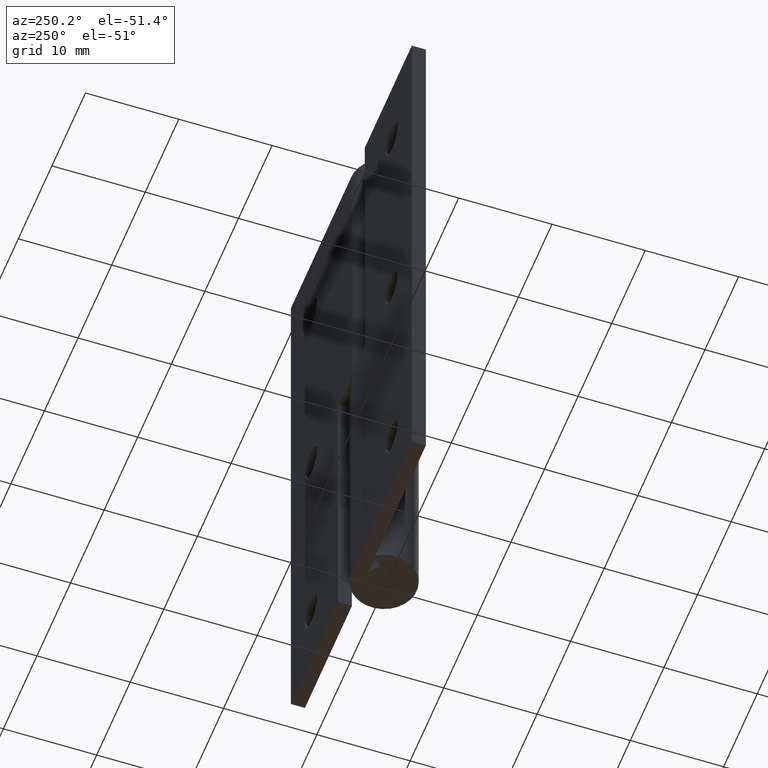
[diagram: clean part render]
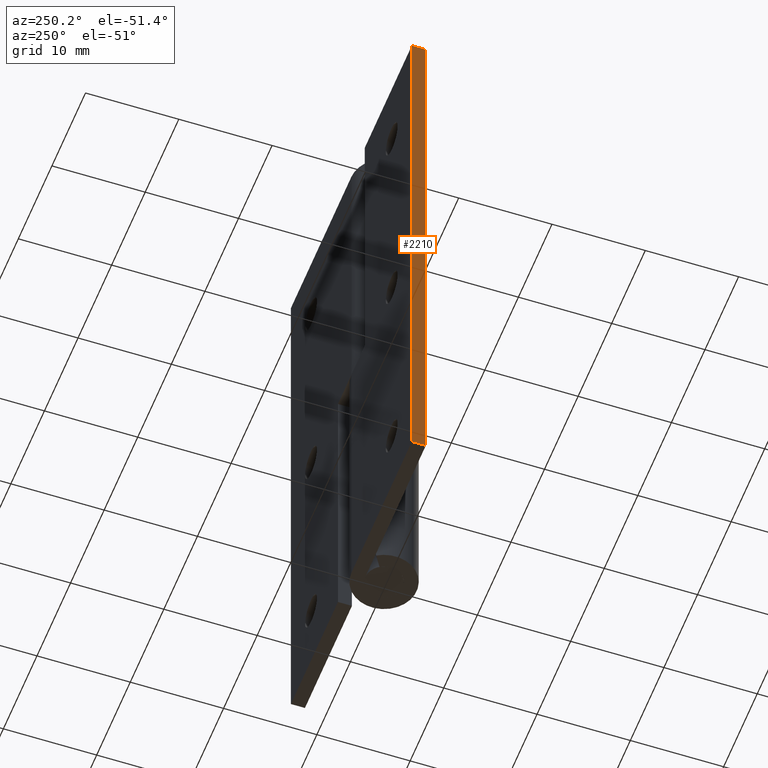
[diagram: same view with one face highlighted and labeled with its STEP entity id]
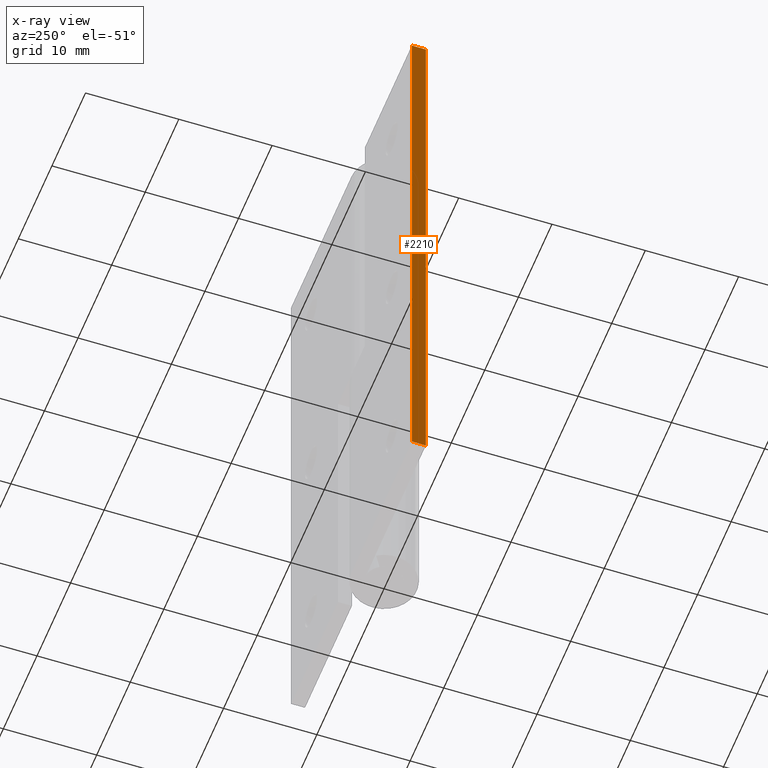
[diagram: x-ray of the same camera — body ghosted, the highlighted face saturated]
A machine part, auxiliary view. The second image highlights one B-rep face of the part: STEP entity #2210.
The next image is the same camera in x-ray: the body ghosted, the highlighted face saturated — about 0% of this face is hidden behind the body in this view.
In plain terms, the highlighted face is a freeform B-spline surface patch.
Its self-contained STEP definition (entity closure, byte-faithful):
#1870=CARTESIAN_POINT('',(-18.0,2.0,64.000007999999994));
#1871=VERTEX_POINT('',#1870);
#1878=CARTESIAN_POINT('',(-18.0,3.499999999999950,64.000007999999994));
#1879=VERTEX_POINT('',#1878);
#1885=CARTESIAN_POINT('',(-18.0,3.499999999999950,64.000007999999994));
#1886=CARTESIAN_POINT('',(-18.0,2.0,64.000007999999994));
#1887=QUASI_UNIFORM_CURVE('',1,(#1885,#1886),.UNSPECIFIED.,.F.,.U.);
#1888=EDGE_CURVE('',#1879,#1871,#1887,.T.);
#1898=CARTESIAN_POINT('',(-18.0,2.0,0.0));
#1899=VERTEX_POINT('',#1898);
#1900=CARTESIAN_POINT('',(-18.0,3.500000000000000,0.0));
#1901=VERTEX_POINT('',#1900);
#1902=CARTESIAN_POINT('',(-18.0,2.0,0.0));
#1903=CARTESIAN_POINT('',(-18.0,3.500000000000000,0.0));
#1904=QUASI_UNIFORM_CURVE('',1,(#1902,#1903),.UNSPECIFIED.,.F.,.U.);
#1905=EDGE_CURVE('',#1899,#1901,#1904,.T.);
#2055=CARTESIAN_POINT('',(-18.0,2.0,64.000007999999994));
#2056=CARTESIAN_POINT('',(-18.0,2.0,0.0));
#2057=QUASI_UNIFORM_CURVE('',1,(#2055,#2056),.UNSPECIFIED.,.F.,.U.);
#2058=EDGE_CURVE('',#1871,#1899,#2057,.T.);
#2169=CARTESIAN_POINT('',(-18.0,3.499999999999950,64.000007999999994));
#2170=CARTESIAN_POINT('',(-18.0,3.500000000000000,0.0));
#2171=QUASI_UNIFORM_CURVE('',1,(#2169,#2170),.UNSPECIFIED.,.F.,.U.);
#2172=EDGE_CURVE('',#1879,#1901,#2171,.T.);
#2199=CARTESIAN_POINT('',(-18.0,1.925075002907291,-3.196800275555568));
#2200=CARTESIAN_POINT('',(-18.0,1.925075002907291,67.196809992169548));
#2201=CARTESIAN_POINT('',(-18.0,3.574925037325844,-3.196800275555568));
#2202=CARTESIAN_POINT('',(-18.0,3.574925037325844,67.196809992169548));
#2203=B_SPLINE_SURFACE_WITH_KNOTS('',1,1,((#2199,#2201),(#2200,#2202)),.UNSPECIFIED.,.F.,.F.,.U.,(2,2),(2,2),(0.0,70.393610267725123),(0.041708334948495,0.958291687403247),.UNSPECIFIED.);
#2204=ORIENTED_EDGE('',*,*,#1905,.F.);
#2205=ORIENTED_EDGE('',*,*,#2058,.F.);
#2206=ORIENTED_EDGE('',*,*,#1888,.F.);
#2207=ORIENTED_EDGE('',*,*,#2172,.T.);
#2208=EDGE_LOOP('',(#2204,#2205,#2206,#2207));
#2209=FACE_OUTER_BOUND('',#2208,.T.);
#2210=ADVANCED_FACE('',(#2209),#2203,.T.);